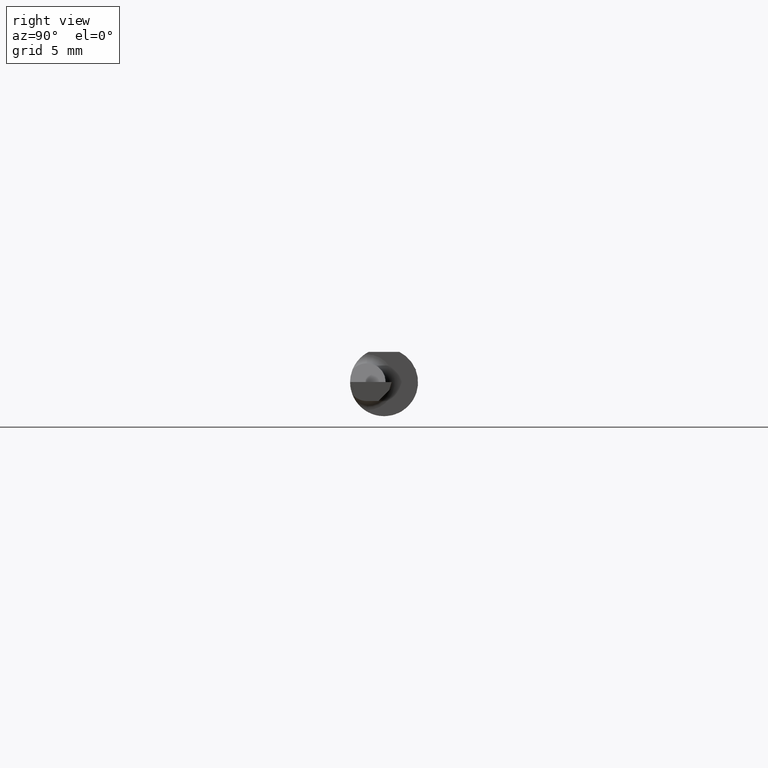
[diagram: clean part render]
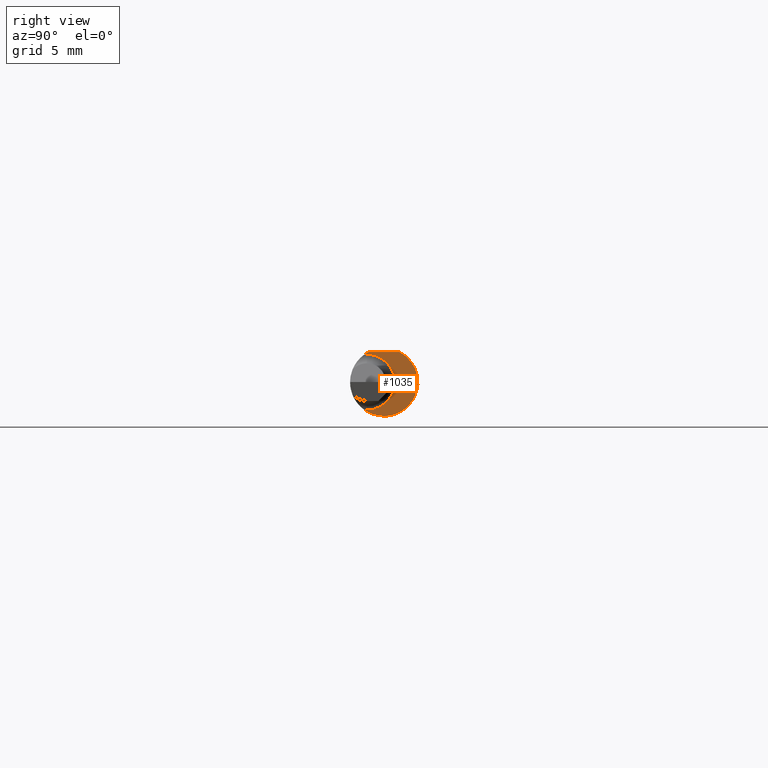
[diagram: same view with one face highlighted and labeled with its STEP entity id]
A machine part, right view. The second image highlights one B-rep face of the part: STEP entity #1035.
In plain terms, the highlighted planar face has unit normal (1, 0, 0).
Its self-contained STEP definition (entity closure, byte-faithful):
#6 = VECTOR ( 'NONE', #1195, 39.37007874015748143 ) ;
#23 = CIRCLE ( 'NONE', #562, 0.07699999999999998512 ) ;
#30 = EDGE_LOOP ( 'NONE', ( #1083, #450, #724, #859, #1037, #423 ) ) ;
#127 = CARTESIAN_POINT ( 'NONE',  ( 1.610000000000000098, 0.04209513035969836975, 0.08360000000000003539 ) ) ;
#135 = VERTEX_POINT ( 'NONE', #631 ) ;
#167 = CARTESIAN_POINT ( 'NONE',  ( 1.610000000000000098, -0.04759999999999998954, -0.07699999999999998512 ) ) ;
#183 = DIRECTION ( 'NONE',  ( -1.000000000000000000, -0.000000000000000000, -0.000000000000000000 ) ) ;
#190 = CARTESIAN_POINT ( 'NONE',  ( 1.610000000000000098, -0.05354747899159666841, 0.07676996478861061735 ) ) ;
#241 = DIRECTION ( 'NONE',  ( 0.000000000000000000, 0.000000000000000000, -1.000000000000000000 ) ) ;
#253 = EDGE_CURVE ( 'NONE', #309, #135, #1103, .T. ) ;
#286 = VERTEX_POINT ( 'NONE', #127 ) ;
#309 = VERTEX_POINT ( 'NONE', #167 ) ;
#353 = EDGE_CURVE ( 'NONE', #286, #975, #1097, .T. ) ;
#362 = FACE_OUTER_BOUND ( 'NONE', #30, .T. ) ;
#375 = VERTEX_POINT ( 'NONE', #190 ) ;
#411 = EDGE_CURVE ( 'NONE', #855, #309, #23, .T. ) ;
#415 = DIRECTION ( 'NONE',  ( 0.000000000000000000, 0.000000000000000000, -1.000000000000000000 ) ) ;
#421 = AXIS2_PLACEMENT_3D ( 'NONE', #1188, #183, #636 ) ;
#423 = ORIENTED_EDGE ( 'NONE', *, *, #353, .T. ) ;
#429 = CARTESIAN_POINT ( 'NONE',  ( 1.610000000000000098, 0.000000000000000000, 0.000000000000000000 ) ) ;
#450 = ORIENTED_EDGE ( 'NONE', *, *, #800, .T. ) ;
#468 = AXIS2_PLACEMENT_3D ( 'NONE', #804, #570, #241 ) ;
#514 = EDGE_CURVE ( 'NONE', #975, #375, #908, .T. ) ;
#520 = DIRECTION ( 'NONE',  ( 1.000000000000000000, 0.000000000000000000, 0.000000000000000000 ) ) ;
#562 = AXIS2_PLACEMENT_3D ( 'NONE', #756, #1107, #1091 ) ;
#570 = DIRECTION ( 'NONE',  ( -1.000000000000000000, -0.000000000000000000, -0.000000000000000000 ) ) ;
#624 = CARTESIAN_POINT ( 'NONE',  ( 1.610000000000000098, -0.04759999999999998260, 0.07699999999999998512 ) ) ;
#625 = DIRECTION ( 'NONE',  ( 1.000000000000000000, 0.000000000000000000, 0.000000000000000000 ) ) ;
#626 = DIRECTION ( 'NONE',  ( 1.000000000000000000, 0.000000000000000000, 0.000000000000000000 ) ) ;
#631 = CARTESIAN_POINT ( 'NONE',  ( 1.610000000000000098, -0.05354747899159666841, -0.07676996478861061735 ) ) ;
#636 = DIRECTION ( 'NONE',  ( 0.000000000000000000, 1.773927268613158264E-14, -1.000000000000000000 ) ) ;
#644 = AXIS2_PLACEMENT_3D ( 'NONE', #429, #625, #1178 ) ;
#676 = CARTESIAN_POINT ( 'NONE',  ( 1.610000000000000098, 0.000000000000000000, 0.000000000000000000 ) ) ;
#724 = ORIENTED_EDGE ( 'NONE', *, *, #411, .T. ) ;
#756 = CARTESIAN_POINT ( 'NONE',  ( 1.610000000000000098, -0.04759999999999998954, 0.000000000000000000 ) ) ;
#800 = EDGE_CURVE ( 'NONE', #375, #855, #1298, .T. ) ;
#804 = CARTESIAN_POINT ( 'NONE',  ( 1.610000000000000098, -0.04759999999999998954, 0.000000000000000000 ) ) ;
#806 = PLANE ( 'NONE',  #1261 ) ;
#835 = AXIS2_PLACEMENT_3D ( 'NONE', #676, #626, #1156 ) ;
#855 = VERTEX_POINT ( 'NONE', #624 ) ;
#859 = ORIENTED_EDGE ( 'NONE', *, *, #253, .T. ) ;
#908 = CIRCLE ( 'NONE', #835, 0.09360000000000001652 ) ;
#967 = CARTESIAN_POINT ( 'NONE',  ( 1.610000000000000098, 0.04793338999999998545, 0.08360000000000003539 ) ) ;
#975 = VERTEX_POINT ( 'NONE', #1120 ) ;
#1019 = CIRCLE ( 'NONE', #644, 0.09360000000000001652 ) ;
#1035 = ADVANCED_FACE ( 'NONE', ( #362 ), #806, .T. ) ;
#1037 = ORIENTED_EDGE ( 'NONE', *, *, #1286, .T. ) ;
#1083 = ORIENTED_EDGE ( 'NONE', *, *, #514, .T. ) ;
#1091 = DIRECTION ( 'NONE',  ( 0.000000000000000000, 0.000000000000000000, -1.000000000000000000 ) ) ;
#1097 = LINE ( 'NONE', #967, #6 ) ;
#1103 = CIRCLE ( 'NONE', #468, 0.07699999999999998512 ) ;
#1107 = DIRECTION ( 'NONE',  ( -1.000000000000000000, -0.000000000000000000, -0.000000000000000000 ) ) ;
#1120 = CARTESIAN_POINT ( 'NONE',  ( 1.610000000000000098, -0.04209513035975542827, 0.08359999999997128062 ) ) ;
#1156 = DIRECTION ( 'NONE',  ( 0.000000000000000000, 0.000000000000000000, -1.000000000000000000 ) ) ;
#1178 = DIRECTION ( 'NONE',  ( 0.000000000000000000, 0.000000000000000000, -1.000000000000000000 ) ) ;
#1188 = CARTESIAN_POINT ( 'NONE',  ( 1.610000000000000098, -0.04759999999999998954, 0.000000000000000000 ) ) ;
#1195 = DIRECTION ( 'NONE',  ( 0.000000000000000000, -1.000000000000000000, 0.000000000000000000 ) ) ;
#1202 = CARTESIAN_POINT ( 'NONE',  ( 1.610000000000000098, 0.1043999999999999789, 0.000000000000000000 ) ) ;
#1261 = AXIS2_PLACEMENT_3D ( 'NONE', #1202, #520, #415 ) ;
#1286 = EDGE_CURVE ( 'NONE', #135, #286, #1019, .T. ) ;
#1298 = CIRCLE ( 'NONE', #421, 0.07699999999999998512 ) ;